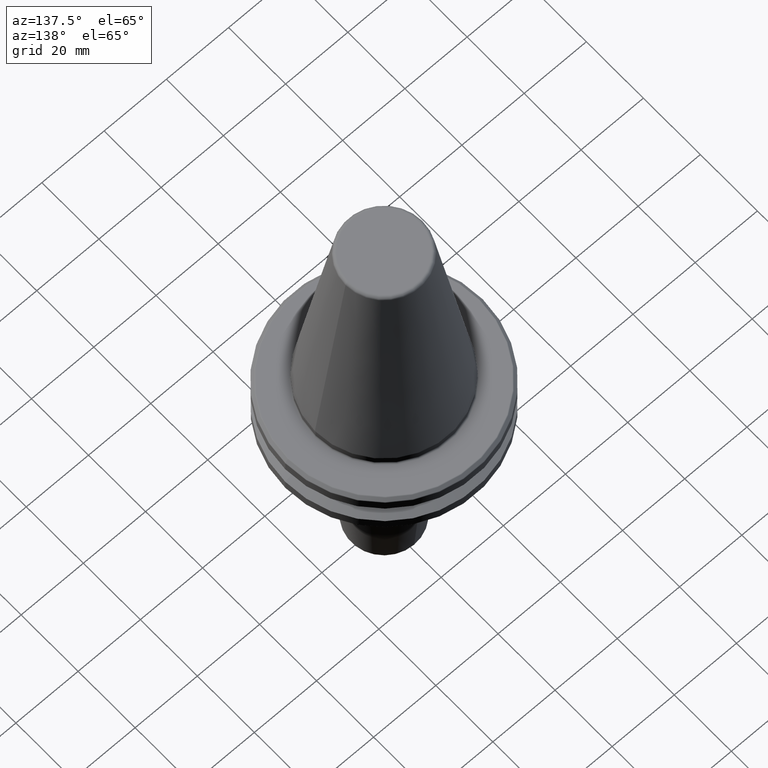
[diagram: clean part render]
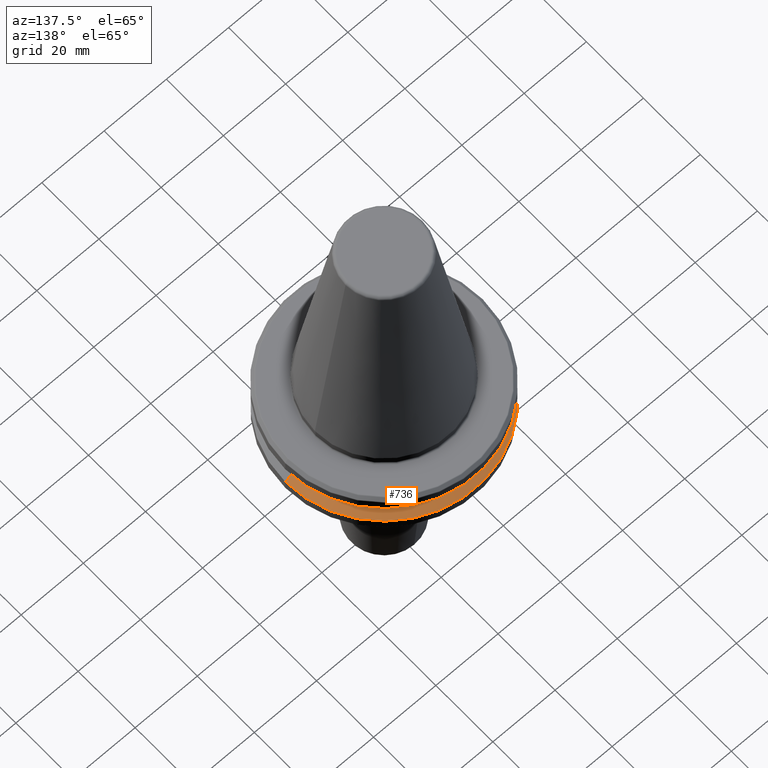
[diagram: same view with one face highlighted and labeled with its STEP entity id]
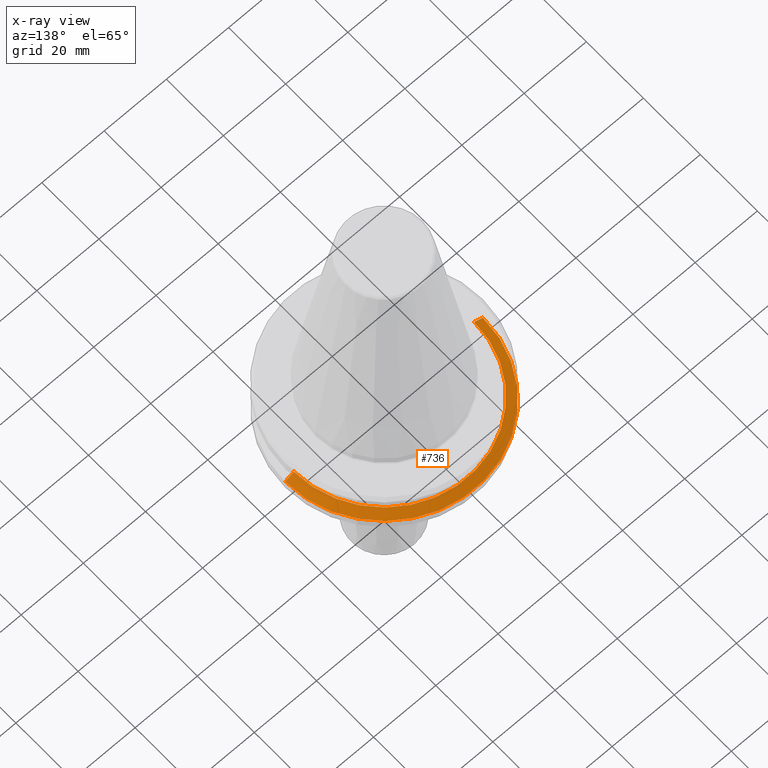
[diagram: x-ray of the same camera — body ghosted, the highlighted face saturated]
A machine part, auxiliary view. The second image highlights one B-rep face of the part: STEP entity #736.
The next image is the same camera in x-ray: the body ghosted, the highlighted face saturated — about 0% of this face is hidden behind the body in this view.
In plain terms, the highlighted conical surface has half-angle 60 deg.
Its self-contained STEP definition (entity closure, byte-faithful):
#38 = AXIS2_PLACEMENT_3D ( 'NONE', #59, #740, #154 ) ;
#59 = CARTESIAN_POINT ( 'NONE',  ( 0.0000000000000000000, 0.0000000000000000000, -14.62183664205671200 ) ) ;
#70 = CARTESIAN_POINT ( 'NONE',  ( 28.94089653438085100, 3.544237630528423800E-015, -13.00000000000001100 ) ) ;
#109 = CARTESIAN_POINT ( 'NONE',  ( 0.0000000000000000000, 0.0000000000000000000, -13.00000000000001100 ) ) ;
#154 = DIRECTION ( 'NONE',  ( 1.000000000000000000, 0.0000000000000000000, 0.0000000000000000000 ) ) ;
#184 = VERTEX_POINT ( 'NONE', #860 ) ;
#216 = LINE ( 'NONE', #70, #1202 ) ;
#217 = ORIENTED_EDGE ( 'NONE', *, *, #1261, .T. ) ;
#228 = CARTESIAN_POINT ( 'NONE',  ( 31.75000000000000000, 0.0000000000000000000, -14.62183664205671200 ) ) ;
#240 = VECTOR ( 'NONE', #341, 999.9999999999998900 ) ;
#315 = EDGE_CURVE ( 'NONE', #876, #184, #951, .T. ) ;
#341 = DIRECTION ( 'NONE',  ( -0.8660254037844420400, 0.0000000000000000000, -0.4999999999999943900 ) ) ;
#398 = DIRECTION ( 'NONE',  ( -1.000000000000000000, 0.0000000000000000000, 0.0000000000000000000 ) ) ;
#406 = DIRECTION ( 'NONE',  ( 0.0000000000000000000, 0.0000000000000000000, -1.000000000000000000 ) ) ;
#495 = VERTEX_POINT ( 'NONE', #228 ) ;
#508 = LINE ( 'NONE', #728, #240 ) ;
#524 = DIRECTION ( 'NONE',  ( -0.0000000000000000000, -0.0000000000000000000, 1.000000000000000000 ) ) ;
#528 = VERTEX_POINT ( 'NONE', #1172 ) ;
#577 = CARTESIAN_POINT ( 'NONE',  ( 0.0000000000000000000, 0.0000000000000000000, -13.00000000000001100 ) ) ;
#601 = FACE_OUTER_BOUND ( 'NONE', #934, .T. ) ;
#629 = AXIS2_PLACEMENT_3D ( 'NONE', #577, #406, #398 ) ;
#683 = CIRCLE ( 'NONE', #38, 31.75000000000000000 ) ;
#704 = DIRECTION ( 'NONE',  ( 1.000000000000000000, 0.0000000000000000000, 0.0000000000000000000 ) ) ;
#728 = CARTESIAN_POINT ( 'NONE',  ( -28.94089653438085100, 0.0000000000000000000, -13.00000000000001100 ) ) ;
#736 = ADVANCED_FACE ( 'NONE', ( #601 ), #1037, .T. ) ;
#740 = DIRECTION ( 'NONE',  ( -0.0000000000000000000, -0.0000000000000000000, 1.000000000000000000 ) ) ;
#753 = DIRECTION ( 'NONE',  ( 0.8660254037844420400, 1.060575238724911000E-016, -0.4999999999999943900 ) ) ;
#823 = EDGE_CURVE ( 'NONE', #876, #495, #216, .T. ) ;
#860 = CARTESIAN_POINT ( 'NONE',  ( -28.94089653438085100, 0.0000000000000000000, -13.00000000000001100 ) ) ;
#871 = ORIENTED_EDGE ( 'NONE', *, *, #315, .F. ) ;
#873 = AXIS2_PLACEMENT_3D ( 'NONE', #109, #524, #704 ) ;
#876 = VERTEX_POINT ( 'NONE', #1229 ) ;
#934 = EDGE_LOOP ( 'NONE', ( #871, #1215, #217, #1245 ) ) ;
#951 = CIRCLE ( 'NONE', #873, 28.94089653438085100 ) ;
#1037 = CONICAL_SURFACE ( 'NONE', #629, 28.94089653438085100, 1.047197551196604300 ) ;
#1172 = CARTESIAN_POINT ( 'NONE',  ( -31.75000000000000000, 3.888253587292846500E-015, -14.62183664205671200 ) ) ;
#1194 = EDGE_CURVE ( 'NONE', #184, #528, #508, .T. ) ;
#1202 = VECTOR ( 'NONE', #753, 999.9999999999998900 ) ;
#1215 = ORIENTED_EDGE ( 'NONE', *, *, #823, .T. ) ;
#1229 = CARTESIAN_POINT ( 'NONE',  ( 28.94089653438085100, 3.716245608910634800E-015, -13.00000000000001100 ) ) ;
#1245 = ORIENTED_EDGE ( 'NONE', *, *, #1194, .F. ) ;
#1261 = EDGE_CURVE ( 'NONE', #495, #528, #683, .T. ) ;